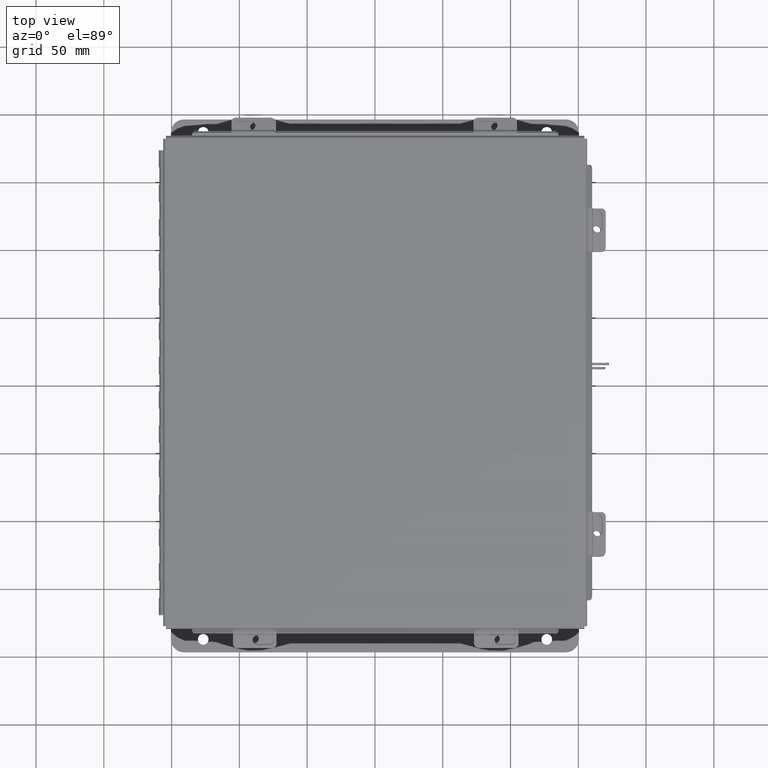
[diagram: clean part render]
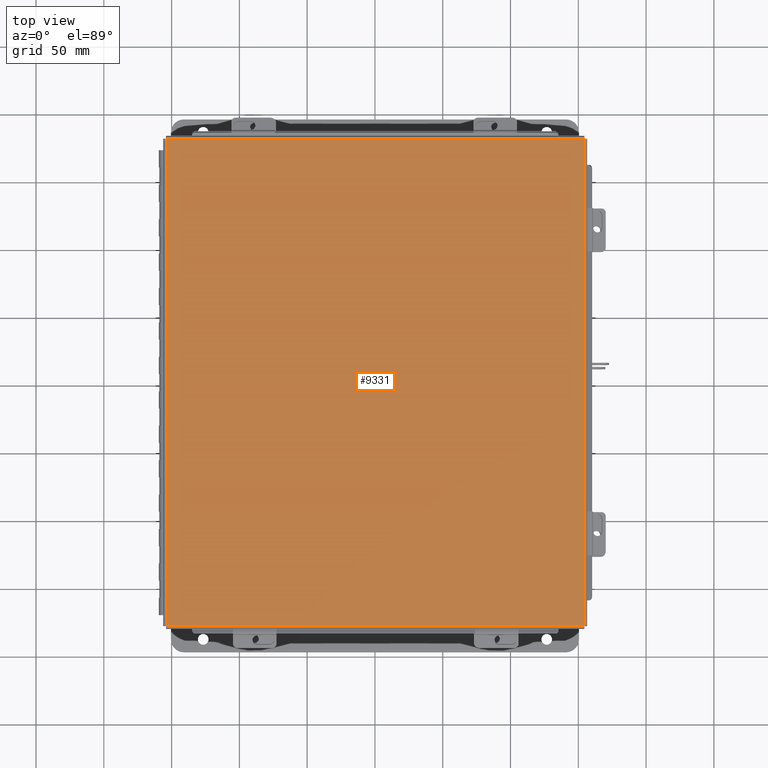
[diagram: same view with one face highlighted and labeled with its STEP entity id]
A machine part, top view. The second image highlights one B-rep face of the part: STEP entity #9331.
In plain terms, the highlighted planar face has unit normal (-0, -0, 1).
Its self-contained STEP definition (entity closure, byte-faithful):
#58 = DIRECTION ( 'NONE',  ( 1.000000000000000000, 0.0000000000000000000, 0.0000000000000000000 ) ) ;
#271 = VECTOR ( 'NONE', #58, 39.37007874015748100 ) ;
#705 = ORIENTED_EDGE ( 'NONE', *, *, #14397, .T. ) ;
#2192 = CARTESIAN_POINT ( 'NONE',  ( -6.068550000000000100, -7.074478932188136500, -0.07470000000000107100 ) ) ;
#2722 = EDGE_CURVE ( 'NONE', #7963, #18970, #8085, .T. ) ;
#3259 = LINE ( 'NONE', #15966, #10110 ) ;
#4391 = CARTESIAN_POINT ( 'NONE',  ( 6.068550000000000100, 7.074478932188133800, -0.07469999999999880900 ) ) ;
#4511 = EDGE_LOOP ( 'NONE', ( #8658, #15788, #705, #8078 ) ) ;
#5120 = AXIS2_PLACEMENT_3D ( 'NONE', #6029, #17723, #17788 ) ;
#5426 = VERTEX_POINT ( 'NONE', #14617 ) ;
#6029 = CARTESIAN_POINT ( 'NONE',  ( 0.0000000000000000000, 0.0000000000000000000, -0.07470000000000000300 ) ) ;
#6378 = FACE_OUTER_BOUND ( 'NONE', #4511, .T. ) ;
#7006 = VECTOR ( 'NONE', #14671, 39.37007874015748100 ) ;
#7513 = PLANE ( 'NONE',  #5120 ) ;
#7732 = CARTESIAN_POINT ( 'NONE',  ( -6.074478932188137400, 7.068549999999999200, -0.07469999999999993300 ) ) ;
#7963 = VERTEX_POINT ( 'NONE', #13939 ) ;
#8078 = ORIENTED_EDGE ( 'NONE', *, *, #15036, .T. ) ;
#8085 = LINE ( 'NONE', #7732, #271 ) ;
#8615 = DIRECTION ( 'NONE',  ( -1.000000000000000000, 0.0000000000000000000, 0.0000000000000000000 ) ) ;
#8658 = ORIENTED_EDGE ( 'NONE', *, *, #2722, .T. ) ;
#9331 = ADVANCED_FACE ( 'NONE', ( #6378 ), #7513, .T. ) ;
#9956 = LINE ( 'NONE', #4391, #7006 ) ;
#10110 = VECTOR ( 'NONE', #8615, 39.37007874015748100 ) ;
#13652 = VECTOR ( 'NONE', #13942, 39.37007874015748100 ) ;
#13939 = CARTESIAN_POINT ( 'NONE',  ( -6.068550000000000100, 7.068549999999999200, -0.07469999999999993300 ) ) ;
#13942 = DIRECTION ( 'NONE',  ( -0.0000000000000000000, 1.000000000000000000, 8.208677865577646300E-017 ) ) ;
#14397 = EDGE_CURVE ( 'NONE', #18979, #5426, #3259, .T. ) ;
#14586 = LINE ( 'NONE', #2192, #13652 ) ;
#14617 = CARTESIAN_POINT ( 'NONE',  ( -6.068550000000000100, -7.068550000000001000, -0.07470000000000107100 ) ) ;
#14671 = DIRECTION ( 'NONE',  ( -0.0000000000000000000, -1.000000000000000000, -8.208677865577646300E-017 ) ) ;
#14786 = EDGE_CURVE ( 'NONE', #18970, #18979, #9956, .T. ) ;
#15036 = EDGE_CURVE ( 'NONE', #5426, #7963, #14586, .T. ) ;
#15788 = ORIENTED_EDGE ( 'NONE', *, *, #14786, .T. ) ;
#15966 = CARTESIAN_POINT ( 'NONE',  ( 6.074478932188137400, -7.068550000000001000, -0.07469999999999993300 ) ) ;
#17317 = CARTESIAN_POINT ( 'NONE',  ( 6.068550000000000100, 7.068549999999999200, -0.07469999999999880900 ) ) ;
#17723 = DIRECTION ( 'NONE',  ( 0.0000000000000000000, 0.0000000000000000000, -1.000000000000000000 ) ) ;
#17788 = DIRECTION ( 'NONE',  ( -1.000000000000000000, 0.0000000000000000000, -0.0000000000000000000 ) ) ;
#18782 = CARTESIAN_POINT ( 'NONE',  ( 6.068550000000000100, -7.068550000000001000, -0.07469999999999993300 ) ) ;
#18970 = VERTEX_POINT ( 'NONE', #17317 ) ;
#18979 = VERTEX_POINT ( 'NONE', #18782 ) ;